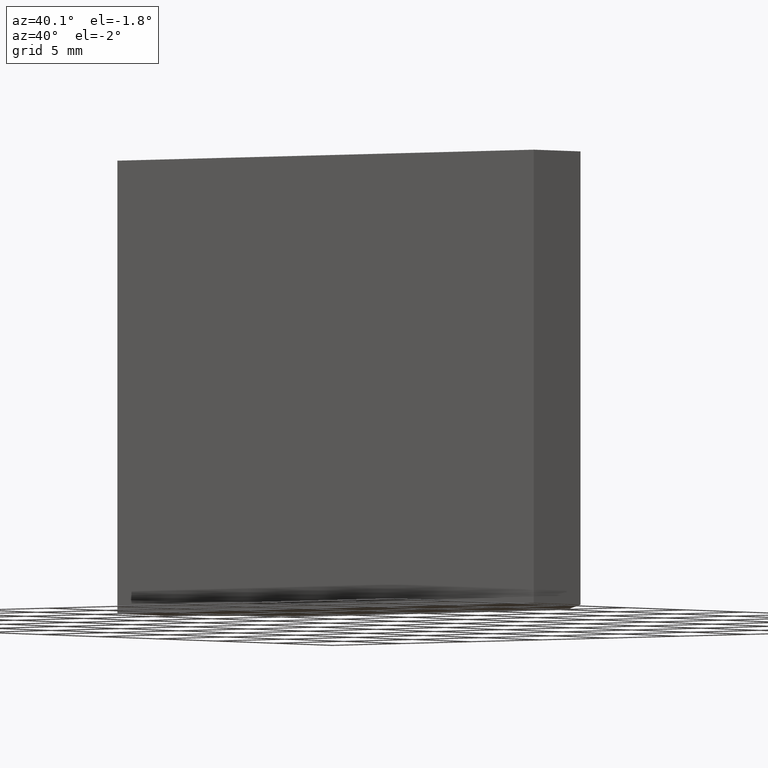
[diagram: clean part render]
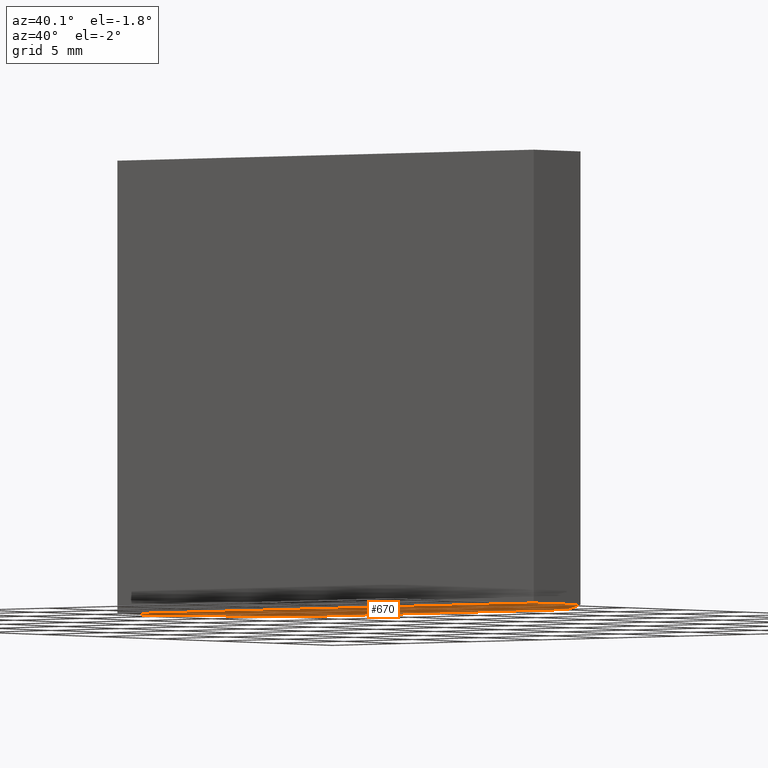
[diagram: same view with one face highlighted and labeled with its STEP entity id]
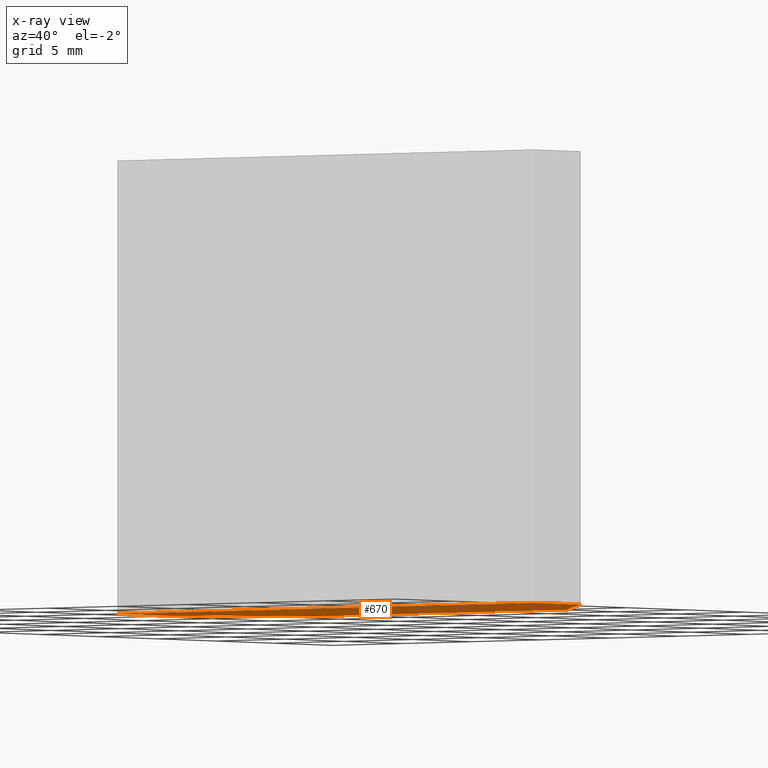
[diagram: x-ray of the same camera — body ghosted, the highlighted face saturated]
A machine part, auxiliary view. The second image highlights one B-rep face of the part: STEP entity #670.
The next image is the same camera in x-ray: the body ghosted, the highlighted face saturated — about 0% of this face is hidden behind the body in this view.
In plain terms, the highlighted planar face has unit normal (0, 0, 1).
Its self-contained STEP definition (entity closure, byte-faithful):
#59=FACE_OUTER_BOUND('',#94,.T.);
#94=EDGE_LOOP('',(#525,#526,#527,#528,#529,#530));
#153=LINE('',#1050,#238);
#156=LINE('',#1055,#241);
#157=LINE('',#1058,#242);
#160=LINE('',#1063,#245);
#162=LINE('',#1067,#247);
#163=LINE('',#1069,#248);
#238=VECTOR('',#861,10.);
#241=VECTOR('',#866,10.);
#242=VECTOR('',#869,10.);
#245=VECTOR('',#874,10.);
#247=VECTOR('',#878,10.);
#248=VECTOR('',#881,10.);
#312=VERTEX_POINT('',#1047);
#313=VERTEX_POINT('',#1049);
#314=VERTEX_POINT('',#1053);
#315=VERTEX_POINT('',#1057);
#316=VERTEX_POINT('',#1061);
#317=VERTEX_POINT('',#1065);
#383=EDGE_CURVE('',#312,#313,#153,.T.);
#386=EDGE_CURVE('',#314,#312,#156,.T.);
#387=EDGE_CURVE('',#313,#315,#157,.T.);
#390=EDGE_CURVE('',#316,#314,#160,.T.);
#392=EDGE_CURVE('',#317,#316,#162,.T.);
#393=EDGE_CURVE('',#315,#317,#163,.T.);
#525=ORIENTED_EDGE('',*,*,#393,.F.);
#526=ORIENTED_EDGE('',*,*,#387,.F.);
#527=ORIENTED_EDGE('',*,*,#383,.F.);
#528=ORIENTED_EDGE('',*,*,#386,.F.);
#529=ORIENTED_EDGE('',*,*,#390,.F.);
#530=ORIENTED_EDGE('',*,*,#392,.F.);
#638=PLANE('',#771);
#670=ADVANCED_FACE('',(#59),#638,.F.);
#771=AXIS2_PLACEMENT_3D('',#1070,#882,#883);
#861=DIRECTION('',(-1.,0.,0.));
#866=DIRECTION('',(-0.707499563151495,0.706713780918728,0.));
#869=DIRECTION('',(-0.707499563151495,-0.706713780918728,0.));
#874=DIRECTION('',(-3.33066907387547E-15,1.,0.));
#878=DIRECTION('',(1.,1.10972946939882E-16,0.));
#881=DIRECTION('',(2.4980018054066E-15,-1.,0.));
#882=DIRECTION('center_axis',(0.,0.,1.));
#883=DIRECTION('ref_axis',(1.,0.,0.));
#1047=CARTESIAN_POINT('',(18.,0.,0.));
#1049=CARTESIAN_POINT('',(0.,0.,0.));
#1050=CARTESIAN_POINT('',(18.,0.,0.));
#1053=CARTESIAN_POINT('',(24.0066712911562,-6.,0.));
#1055=CARTESIAN_POINT('',(24.0066712911562,-6.,0.));
#1057=CARTESIAN_POINT('',(-6.0066712911562,-6.,0.));
#1058=CARTESIAN_POINT('',(0.,0.,0.));
#1061=CARTESIAN_POINT('',(24.0066712911562,-10.,0.));
#1063=CARTESIAN_POINT('',(24.0066712911562,-10.,0.));
#1065=CARTESIAN_POINT('',(-6.00667129115619,-10.,0.));
#1067=CARTESIAN_POINT('',(-6.00667129115619,-10.,0.));
#1069=CARTESIAN_POINT('',(-6.0066712911562,-6.,0.));
#1070=CARTESIAN_POINT('Origin',(9.,-8.,0.));